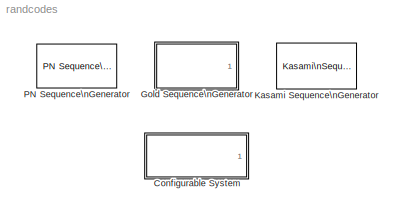
MODEL randcodes
KIND library
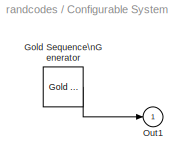
BLOCK [SubSystem] Configurable System
  BlockChoice = Gold Sequence Generator
  MemberBlocks = Gold Sequence Generator,Kasami Sequence Generator,PN Sequence Generator
  Ports = [0, 1]
  TemplateBlock = self
  TreatAsAtomicUnit = off
BLOCK [Reference] Configurable System/Gold Sequence\nGenerator  REF=randcodes/Gold Sequence\nGenerator  (lib defined in mdl_23af5220726c)
  AncestorBlock = commseqgen2/Gold Sequence\nGenerator
  Ports = [0, 1]
  SourceBlock = randcodes/Gold Sequence\nGenerator
  SourceType = Gold Sequence Generator
  frameBased = off
  genPoly1 = [1 0 0 0 0 1 1]
  genPoly2 = [1 1 0 0 1 1 1]
  index = 0
  iniState1 = [0 0 0 0 0 1]
  iniState2 = [0 0 0 0 0 1]
  reset = off
  sampPerFrame = 1
  shift = 0
  ts = 1
BLOCK [Outport] Configurable System/Out1
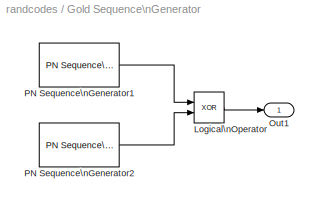
BLOCK [SubSystem] Gold Sequence\nGenerator
  AncestorBlock = commseqgen2/Gold Sequence\nGenerator
  MaskCallbackString = |||||||commblkgcgen(gcb,'cbFrameBased');||commblkgcgen(gcb,'cbReset');
  MaskDescription = Generate a Gold sequence from a set of sequences by specifying a preferred pair of polynomials.\n\n\nThe polynomial parameter values represent the shift register connections. Enter these values as either a binary vector or a descending ordered polynomial to indicate the connection points.\n\n\nThe initial states parameters are binary vectors that represent the starting state of the shift registers.\n...<+438ch>
  MaskDisplay = disp('Gold Sequence\\nGenerator');\n\ntext(0.03, 0.5, rstPortLbl);
  MaskEnableString = on,on,on,on,on,on,on,on,off,on
  MaskHelp = helpview(commbhelp);
  MaskIconFrame = on
  MaskIconOpaque = on
  MaskIconRotate = none
  MaskIconUnits = normalized
  MaskInitialization = [genPoly1, iniState1, genPoly2, iniState2, index, shift, rstPortLbl, eStr] = commblkgcgen(gcb, 'init');\n\nif (eStr.ecode == 1)\n\n	error(eStr.emsg);\n\nend
  MaskPromptString = Preferred polynomial (1):|Initial states (1):|Preferred polynomial (2):|Initial states (2):|Sequence index:|Shift:|Sample time:|Frame-based outputs|Samples per frame:|Reset on nonzero input
  MaskSelfModifiable = on
  MaskStyleString = edit,edit,edit,edit,edit,edit,edit,checkbox,edit,checkbox
  MaskToolTipString = on,on,on,on,on,on,on,on,on,on
  MaskTunableValueString = on,on,on,on,on,on,on,on,on,off
  MaskType = Gold Sequence Generator
  MaskValueString = [1 0 0 0 0 1 1]|[0 0 0 0 0 1]|[1 1 0 0 1 1 1]|[0 0 0 0 0 1]|0|0|1|off|1|off
  MaskVarAliasString = ,,,,,,,,,
  MaskVariables = genPoly1=@1;iniState1=@2;genPoly2=@3;iniState2=@4;index=@5;shift=@6;ts=@7;frameBased=@8;sampPerFrame=@9;reset=@10;
  MaskVisibilityString = on,on,on,on,on,on,on,on,on,on
  Ports = [0, 1]
  TreatAsAtomicUnit = off
BLOCK [Logic] Gold Sequence\nGenerator/Logical\nOperator
  LogicDataType = float('double')
  Operator = XOR
  OutDataTypeMode = Specify via dialog
  Ports = [2, 1]
  ShowAdditionalParam = on
BLOCK [Outport] Gold Sequence\nGenerator/Out1
BLOCK [Reference] Gold Sequence\nGenerator/PN Sequence\nGenerator1  REF=commseqgen2/PN Sequence\nGenerator
  Ports = [0, 1]
  SourceBlock = commseqgen2/PN Sequence\nGenerator
  SourceType = PN Sequence Generator
  Ts = ts
  frameBased = off
  ini_sta = iniState1
  poly = genPoly1
  reset = off
  sampPerFrame = sampPerFrame
  shift = shift
BLOCK [Reference] Gold Sequence\nGenerator/PN Sequence\nGenerator2  REF=commseqgen2/PN Sequence\nGenerator
  Ports = [0, 1]
  SourceBlock = commseqgen2/PN Sequence\nGenerator
  SourceType = PN Sequence Generator
  Ts = ts
  frameBased = off
  ini_sta = iniState2
  poly = genPoly2
  reset = off
  sampPerFrame = sampPerFrame
  shift = shift + index
BLOCK [Reference] Kasami Sequence\nGenerator  REF=commseqgen2/Kasami\nSequence\nGenerator
  Ports = [0, 1]
  SourceBlock = commseqgen2/Kasami\nSequence\nGenerator
  SourceType = Kasami Sequence Generator
  codeIdx = 0
  frameBased = off
  genPoly = [1 0 0 0 0 1 1]
  iniState = [0 0 0 0 0 1]
  reset = off
  sampPerFrame = 1
  shift = 0
  ts = 1
BLOCK [Reference] PN Sequence\nGenerator  REF=commseqgen2/PN Sequence\nGenerator
  Ports = [0, 1]
  SourceBlock = commseqgen2/PN Sequence\nGenerator
  SourceType = PN Sequence Generator
  Ts = 1
  frameBased = off
  ini_sta = [0 0 0 0 0 1]
  poly = [1 0 0 0 0 1 1]
  reset = off
  sampPerFrame = 1
  shift = 0
LINE Configurable System/Gold Sequence\nGenerator:1 -> Configurable System/Out1:1
LINE Gold Sequence\nGenerator/Logical\nOperator:1 -> Gold Sequence\nGenerator/Out1:1
LINE Gold Sequence\nGenerator/PN Sequence\nGenerator1:1 -> Gold Sequence\nGenerator/Logical\nOperator:1
LINE Gold Sequence\nGenerator/PN Sequence\nGenerator2:1 -> Gold Sequence\nGenerator/Logical\nOperator:2
